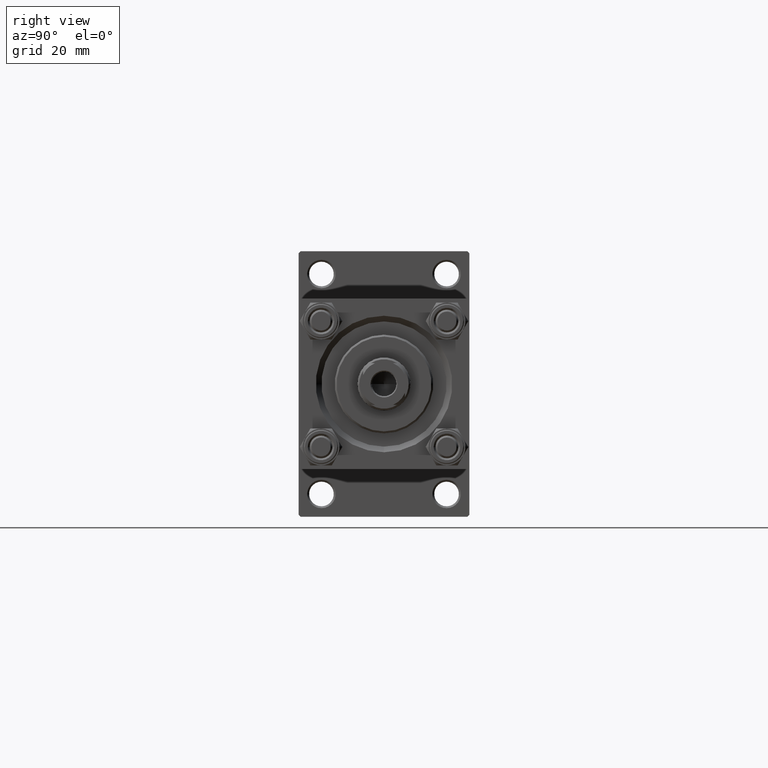
[diagram: clean part render]
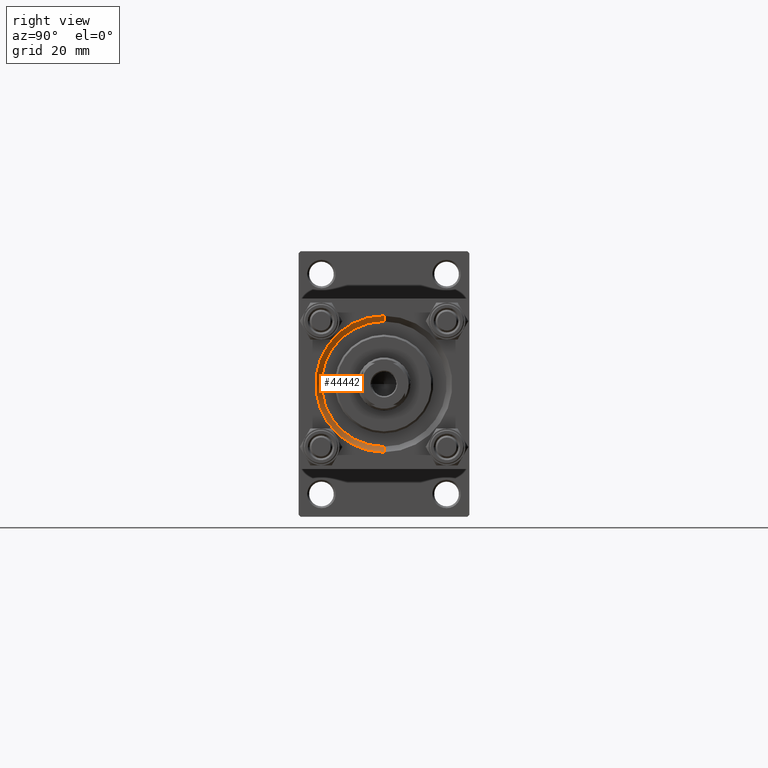
[diagram: same view with one face highlighted and labeled with its STEP entity id]
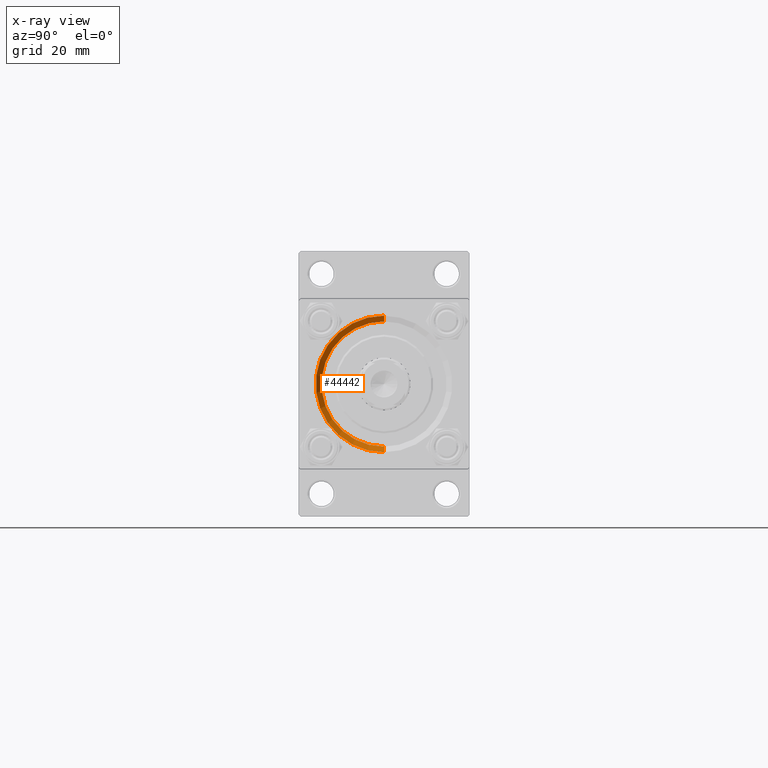
[diagram: x-ray of the same camera — body ghosted, the highlighted face saturated]
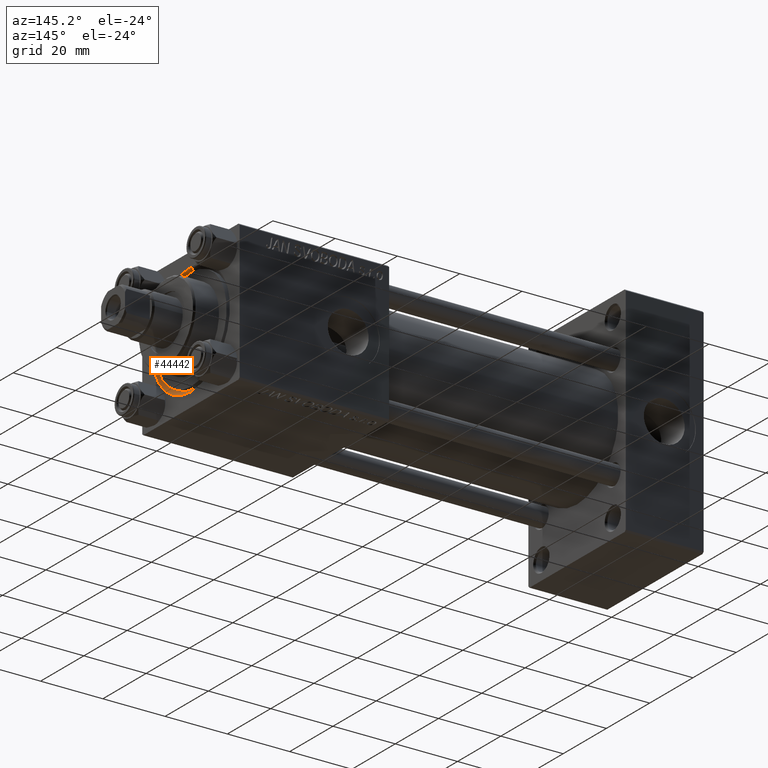
[diagram: same view with one face highlighted and labeled with its STEP entity id]
A machine part, right view. The second image highlights one B-rep face of the part: STEP entity #44442.
The next image is the same camera in x-ray: the body ghosted, the highlighted face saturated — about 0% of this face is hidden behind the body in this view.
A second angle (auxiliary view) of the same face is appended — the face is thin or edge-on in the first view.
In plain terms, the highlighted conical surface has half-angle 45 deg.
Its self-contained STEP definition (entity closure, byte-faithful):
#71 = CARTESIAN_POINT ( 'NONE',  ( 149.0000000000000284, 2.204364238465237794E-15, 18.00000000000001421 ) ) ;
#282 = ORIENTED_EDGE ( 'NONE', *, *, #31943, .F. ) ;
#534 = DIRECTION ( 'NONE',  ( 1.000000000000000000, 0.000000000000000000, 0.000000000000000000 ) ) ;
#722 = AXIS2_PLACEMENT_3D ( 'NONE', #20282, #20528, #8403 ) ;
#2422 = VERTEX_POINT ( 'NONE', #23300 ) ;
#5946 = EDGE_CURVE ( 'NONE', #8189, #44341, #41720, .T. ) ;
#7743 = VECTOR ( 'NONE', #23016, 999.9999999999998863 ) ;
#8085 = CARTESIAN_POINT ( 'NONE',  ( 147.4999999999999716, 0.000000000000000000, -16.50000000000000000 ) ) ;
#8189 = VERTEX_POINT ( 'NONE', #23088 ) ;
#8403 = DIRECTION ( 'NONE',  ( 0.000000000000000000, 0.000000000000000000, -1.000000000000000000 ) ) ;
#13666 = ORIENTED_EDGE ( 'NONE', *, *, #5946, .T. ) ;
#15676 = CARTESIAN_POINT ( 'NONE',  ( 147.4999999999999716, 2.020667218593133100E-15, 16.50000000000000000 ) ) ;
#16470 = FACE_OUTER_BOUND ( 'NONE', #20079, .T. ) ;
#19045 = CIRCLE ( 'NONE', #47249, 18.00000000000001421 ) ;
#19460 = LINE ( 'NONE', #8085, #7743 ) ;
#20011 = DIRECTION ( 'NONE',  ( 0.000000000000000000, 0.000000000000000000, 1.000000000000000000 ) ) ;
#20079 = EDGE_LOOP ( 'NONE', ( #44709, #13666, #41083, #282 ) ) ;
#20282 = CARTESIAN_POINT ( 'NONE',  ( 147.4999999999999716, 0.000000000000000000, 0.000000000000000000 ) ) ;
#20528 = DIRECTION ( 'NONE',  ( 1.000000000000000000, 0.000000000000000000, 0.000000000000000000 ) ) ;
#21685 = VERTEX_POINT ( 'NONE', #42257 ) ;
#23016 = DIRECTION ( 'NONE',  ( 0.7071067811865574537, 0.000000000000000000, -0.7071067811865376918 ) ) ;
#23088 = CARTESIAN_POINT ( 'NONE',  ( 147.4999999999999716, 2.020667218593133100E-15, 16.50000000000000000 ) ) ;
#23300 = CARTESIAN_POINT ( 'NONE',  ( 149.0000000000000284, 0.000000000000000000, -18.00000000000001421 ) ) ;
#23790 = CARTESIAN_POINT ( 'NONE',  ( 147.4999999999999716, 0.000000000000000000, 0.000000000000000000 ) ) ;
#25064 = CIRCLE ( 'NONE', #34742, 16.50000000000000000 ) ;
#26527 = DIRECTION ( 'NONE',  ( -1.000000000000000000, 0.000000000000000000, -0.000000000000000000 ) ) ;
#31943 = EDGE_CURVE ( 'NONE', #21685, #2422, #19460, .T. ) ;
#32291 = EDGE_CURVE ( 'NONE', #2422, #44341, #19045, .T. ) ;
#34636 = CONICAL_SURFACE ( 'NONE', #722, 16.50000000000000000, 0.7853981633974344012 ) ;
#34742 = AXIS2_PLACEMENT_3D ( 'NONE', #23790, #534, #20011 ) ;
#37457 = VECTOR ( 'NONE', #37928, 999.9999999999998863 ) ;
#37928 = DIRECTION ( 'NONE',  ( 0.7071067811865574537, 8.659560562354813296E-17, 0.7071067811865376918 ) ) ;
#41083 = ORIENTED_EDGE ( 'NONE', *, *, #32291, .F. ) ;
#41720 = LINE ( 'NONE', #15676, #37457 ) ;
#41922 = DIRECTION ( 'NONE',  ( 0.000000000000000000, 0.000000000000000000, 1.000000000000000000 ) ) ;
#42257 = CARTESIAN_POINT ( 'NONE',  ( 147.4999999999999716, 0.000000000000000000, -16.50000000000000000 ) ) ;
#44341 = VERTEX_POINT ( 'NONE', #71 ) ;
#44442 = ADVANCED_FACE ( 'NONE', ( #16470 ), #34636, .F. ) ;
#44709 = ORIENTED_EDGE ( 'NONE', *, *, #48135, .F. ) ;
#47249 = AXIS2_PLACEMENT_3D ( 'NONE', #49997, #26527, #41922 ) ;
#48135 = EDGE_CURVE ( 'NONE', #8189, #21685, #25064, .T. ) ;
#49997 = CARTESIAN_POINT ( 'NONE',  ( 149.0000000000000284, 0.000000000000000000, 0.000000000000000000 ) ) ;